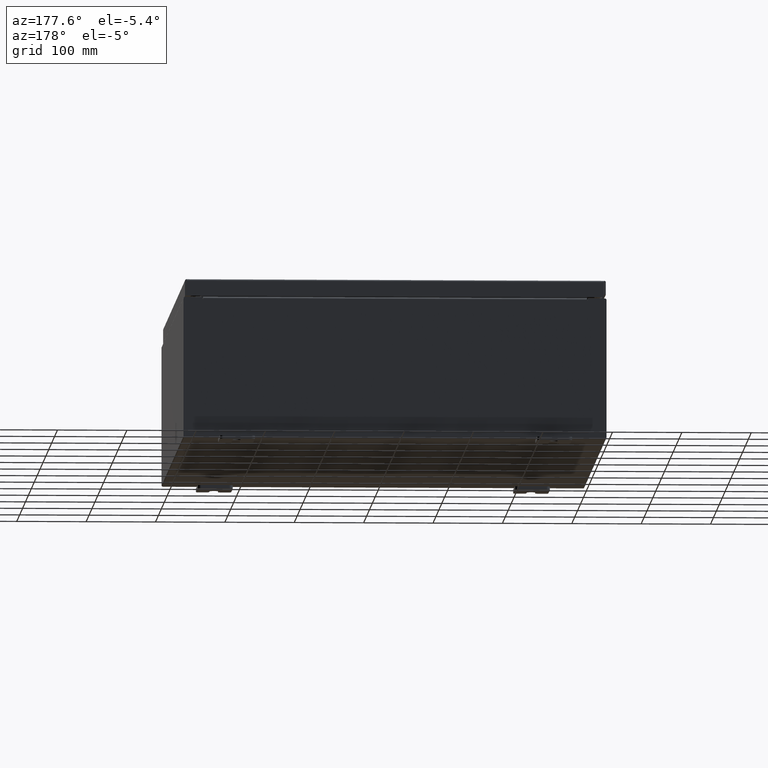
[diagram: clean part render]
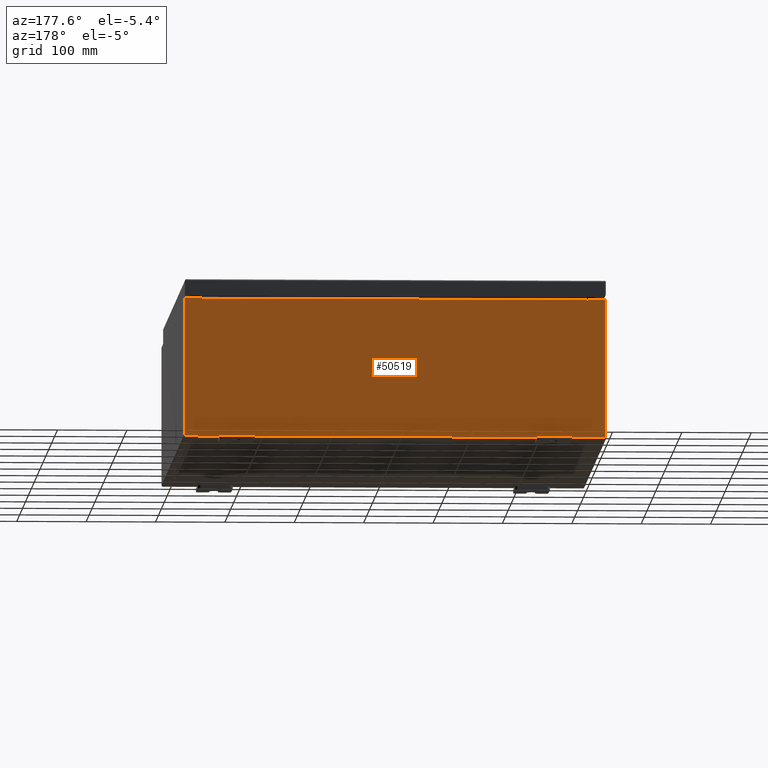
[diagram: same view with one face highlighted and labeled with its STEP entity id]
A machine part, auxiliary view. The second image highlights one B-rep face of the part: STEP entity #50519.
In plain terms, the highlighted planar face has unit normal (0, -1, 0).
Its self-contained STEP definition (entity closure, byte-faithful):
#976 = VERTEX_POINT ( 'NONE', #43366 ) ;
#1557 = DIRECTION ( 'NONE',  ( 1.000000000000000000, 0.0000000000000000000, 0.0000000000000000000 ) ) ;
#4374 = VERTEX_POINT ( 'NONE', #22003 ) ;
#4821 = EDGE_CURVE ( 'NONE', #49470, #31231, #39548, .T. ) ;
#5451 = DIRECTION ( 'NONE',  ( 0.0000000000000000000, 0.0000000000000000000, 1.000000000000000000 ) ) ;
#8225 = EDGE_CURVE ( 'NONE', #4374, #29834, #40112, .T. ) ;
#8333 = CARTESIAN_POINT ( 'NONE',  ( 11.92530000000000000, 0.0000000000000000000, -3.925299999999999600 ) ) ;
#8567 = PLANE ( 'NONE',  #63793 ) ;
#9384 = CARTESIAN_POINT ( 'NONE',  ( -10.92454999999999800, 0.0000000000000000000, 3.925299999999999600 ) ) ;
#10372 = VECTOR ( 'NONE', #54932, 39.37007874015748100 ) ;
#10980 = CIRCLE ( 'NONE', #26526, 0.01867499999999949400 ) ;
#11068 = EDGE_CURVE ( 'NONE', #25226, #48181, #14481, .T. ) ;
#12530 = CARTESIAN_POINT ( 'NONE',  ( 10.92455000000000000, 0.0000000000000000000, 3.874949999999999700 ) ) ;
#13316 = CARTESIAN_POINT ( 'NONE',  ( -10.88720000000000200, 1.024442997624098700E-016, 3.912299999999999700 ) ) ;
#13675 = DIRECTION ( 'NONE',  ( -0.0000000000000000000, 1.000000000000000000, -0.0000000000000000000 ) ) ;
#13733 = CARTESIAN_POINT ( 'NONE',  ( 0.0000000000000000000, 0.0000000000000000000, 0.0000000000000000000 ) ) ;
#14102 = VECTOR ( 'NONE', #22635, 39.37007874015748100 ) ;
#14481 = LINE ( 'NONE', #25002, #39261 ) ;
#14810 = ORIENTED_EDGE ( 'NONE', *, *, #46507, .T. ) ;
#15770 = DIRECTION ( 'NONE',  ( 0.0000000000000000000, 0.0000000000000000000, -1.000000000000000000 ) ) ;
#15912 = VERTEX_POINT ( 'NONE', #12530 ) ;
#17041 = VECTOR ( 'NONE', #34251, 39.37007874015748100 ) ;
#17303 = EDGE_CURVE ( 'NONE', #21195, #15912, #50543, .T. ) ;
#17439 = ORIENTED_EDGE ( 'NONE', *, *, #29696, .F. ) ;
#17466 = CARTESIAN_POINT ( 'NONE',  ( 11.92530000000000000, 0.0000000000000000000, 3.925299999999999600 ) ) ;
#18724 = DIRECTION ( 'NONE',  ( 0.0000000000000000000, -0.0000000000000000000, -1.000000000000000000 ) ) ;
#19881 = VECTOR ( 'NONE', #5451, 39.37007874015748100 ) ;
#19937 = ORIENTED_EDGE ( 'NONE', *, *, #8225, .T. ) ;
#21195 = VERTEX_POINT ( 'NONE', #57542 ) ;
#22003 = CARTESIAN_POINT ( 'NONE',  ( -10.88720000000000000, 1.024442997624098700E-016, 3.912299999999999700 ) ) ;
#22635 = DIRECTION ( 'NONE',  ( -4.340572780400004900E-014, 0.0000000000000000000, -1.000000000000000000 ) ) ;
#23246 = DIRECTION ( 'NONE',  ( 1.000000000000000000, 0.0000000000000000000, 0.0000000000000000000 ) ) ;
#23700 = CARTESIAN_POINT ( 'NONE',  ( -11.92530000000000000, 0.0000000000000000000, 3.925299999999999600 ) ) ;
#25002 = CARTESIAN_POINT ( 'NONE',  ( -11.92530000000000000, 0.0000000000000000000, -3.925299999999999600 ) ) ;
#25226 = VERTEX_POINT ( 'NONE', #8333 ) ;
#25349 = ORIENTED_EDGE ( 'NONE', *, *, #62220, .T. ) ;
#26276 = ORIENTED_EDGE ( 'NONE', *, *, #54678, .F. ) ;
#26522 = ORIENTED_EDGE ( 'NONE', *, *, #35929, .F. ) ;
#26526 = AXIS2_PLACEMENT_3D ( 'NONE', #59013, #29311, #63991 ) ;
#26705 = LINE ( 'NONE', #23700, #51564 ) ;
#27170 = EDGE_CURVE ( 'NONE', #976, #31231, #61513, .T. ) ;
#29311 = DIRECTION ( 'NONE',  ( -0.0000000000000000000, 1.000000000000000000, -0.0000000000000000000 ) ) ;
#29696 = EDGE_CURVE ( 'NONE', #57983, #976, #10980, .T. ) ;
#29834 = VERTEX_POINT ( 'NONE', #49172 ) ;
#30087 = CARTESIAN_POINT ( 'NONE',  ( 10.88720000000000200, 0.0000000000000000000, 0.0000000000000000000 ) ) ;
#30189 = LINE ( 'NONE', #54047, #17041 ) ;
#30386 = CIRCLE ( 'NONE', #62925, 0.01867499999999949400 ) ;
#31231 = VERTEX_POINT ( 'NONE', #9384 ) ;
#31507 = CARTESIAN_POINT ( 'NONE',  ( -11.92530000000000000, 0.0000000000000000000, 3.925299999999999600 ) ) ;
#34046 = VERTEX_POINT ( 'NONE', #17466 ) ;
#34251 = DIRECTION ( 'NONE',  ( 0.0000000000000000000, 0.0000000000000000000, -1.000000000000000000 ) ) ;
#35929 = EDGE_CURVE ( 'NONE', #60275, #29834, #49370, .T. ) ;
#36850 = CARTESIAN_POINT ( 'NONE',  ( -11.92530000000000000, 0.0000000000000000000, 3.925299999999999600 ) ) ;
#38544 = VECTOR ( 'NONE', #23246, 39.37007874015748100 ) ;
#39261 = VECTOR ( 'NONE', #54751, 39.37007874015748100 ) ;
#39548 = LINE ( 'NONE', #60992, #51210 ) ;
#39720 = CARTESIAN_POINT ( 'NONE',  ( -10.92454999999999800, -0.0000000000000000000, 0.0000000000000000000 ) ) ;
#40112 = LINE ( 'NONE', #13316, #38544 ) ;
#40263 = LINE ( 'NONE', #31507, #56585 ) ;
#40524 = EDGE_CURVE ( 'NONE', #21195, #34046, #40263, .T. ) ;
#40877 = CARTESIAN_POINT ( 'NONE',  ( -10.88720000000000000, -0.0000000000000000000, 0.0000000000000000000 ) ) ;
#41287 = EDGE_LOOP ( 'NONE', ( #49364, #17439, #26276, #19937, #26522, #51351, #53707, #55238, #25349, #56451, #14810, #44660 ) ) ;
#42452 = DIRECTION ( 'NONE',  ( 1.000000000000000000, 0.0000000000000000000, 0.0000000000000000000 ) ) ;
#43346 = CARTESIAN_POINT ( 'NONE',  ( 10.90587500000000200, 0.0000000000000000000, 3.874949999999999700 ) ) ;
#43366 = CARTESIAN_POINT ( 'NONE',  ( -10.92454999999999800, 0.0000000000000000000, 3.874949999999999700 ) ) ;
#43879 = LINE ( 'NONE', #40877, #55506 ) ;
#44660 = ORIENTED_EDGE ( 'NONE', *, *, #4821, .T. ) ;
#46184 = CARTESIAN_POINT ( 'NONE',  ( -10.88720000000000000, -0.0000000000000000000, 3.874949999999999700 ) ) ;
#46507 = EDGE_CURVE ( 'NONE', #48181, #49470, #26705, .T. ) ;
#46645 = FACE_OUTER_BOUND ( 'NONE', #41287, .T. ) ;
#47624 = CARTESIAN_POINT ( 'NONE',  ( -11.92530000000000000, 0.0000000000000000000, -3.925299999999999600 ) ) ;
#48181 = VERTEX_POINT ( 'NONE', #47624 ) ;
#48349 = DIRECTION ( 'NONE',  ( 0.0000000000000000000, 0.0000000000000000000, -1.000000000000000000 ) ) ;
#48408 = DIRECTION ( 'NONE',  ( 0.0000000000000000000, -1.000000000000000000, 0.0000000000000000000 ) ) ;
#49172 = CARTESIAN_POINT ( 'NONE',  ( 10.88720000000000200, 0.0000000000000000000, 3.912299999999999700 ) ) ;
#49344 = CARTESIAN_POINT ( 'NONE',  ( 10.88720000000000200, 0.0000000000000000000, 3.874949999999999700 ) ) ;
#49364 = ORIENTED_EDGE ( 'NONE', *, *, #27170, .F. ) ;
#49370 = LINE ( 'NONE', #30087, #19881 ) ;
#49470 = VERTEX_POINT ( 'NONE', #36850 ) ;
#49698 = EDGE_CURVE ( 'NONE', #15912, #60275, #30386, .T. ) ;
#50519 = ADVANCED_FACE ( 'NONE', ( #46645 ), #8567, .F. ) ;
#50543 = LINE ( 'NONE', #57331, #14102 ) ;
#51210 = VECTOR ( 'NONE', #42452, 39.37007874015748100 ) ;
#51351 = ORIENTED_EDGE ( 'NONE', *, *, #49698, .F. ) ;
#51564 = VECTOR ( 'NONE', #53440, 39.37007874015748100 ) ;
#53440 = DIRECTION ( 'NONE',  ( -0.0000000000000000000, -0.0000000000000000000, 1.000000000000000000 ) ) ;
#53707 = ORIENTED_EDGE ( 'NONE', *, *, #17303, .F. ) ;
#54047 = CARTESIAN_POINT ( 'NONE',  ( 11.92530000000000000, 0.0000000000000000000, 3.925299999999999600 ) ) ;
#54678 = EDGE_CURVE ( 'NONE', #4374, #57983, #43879, .T. ) ;
#54751 = DIRECTION ( 'NONE',  ( -1.000000000000000000, -0.0000000000000000000, -0.0000000000000000000 ) ) ;
#54932 = DIRECTION ( 'NONE',  ( 0.0000000000000000000, 0.0000000000000000000, 1.000000000000000000 ) ) ;
#55238 = ORIENTED_EDGE ( 'NONE', *, *, #40524, .T. ) ;
#55506 = VECTOR ( 'NONE', #15770, 39.37007874015748100 ) ;
#56451 = ORIENTED_EDGE ( 'NONE', *, *, #11068, .T. ) ;
#56585 = VECTOR ( 'NONE', #1557, 39.37007874015748100 ) ;
#57331 = CARTESIAN_POINT ( 'NONE',  ( 10.92454999999983300, -0.0000000000000000000, -4.741880436811814400E-013 ) ) ;
#57542 = CARTESIAN_POINT ( 'NONE',  ( 10.92455000000000000, 0.0000000000000000000, 3.925299999999999600 ) ) ;
#57983 = VERTEX_POINT ( 'NONE', #46184 ) ;
#59013 = CARTESIAN_POINT ( 'NONE',  ( -10.90587500000000000, 0.0000000000000000000, 3.874949999999999700 ) ) ;
#60275 = VERTEX_POINT ( 'NONE', #49344 ) ;
#60992 = CARTESIAN_POINT ( 'NONE',  ( -11.92530000000000000, 0.0000000000000000000, 3.925299999999999600 ) ) ;
#61513 = LINE ( 'NONE', #39720, #10372 ) ;
#62220 = EDGE_CURVE ( 'NONE', #34046, #25226, #30189, .T. ) ;
#62925 = AXIS2_PLACEMENT_3D ( 'NONE', #43346, #13675, #48349 ) ;
#63793 = AXIS2_PLACEMENT_3D ( 'NONE', #13733, #48408, #18724 ) ;
#63991 = DIRECTION ( 'NONE',  ( 0.0000000000000000000, 0.0000000000000000000, -1.000000000000000000 ) ) ;